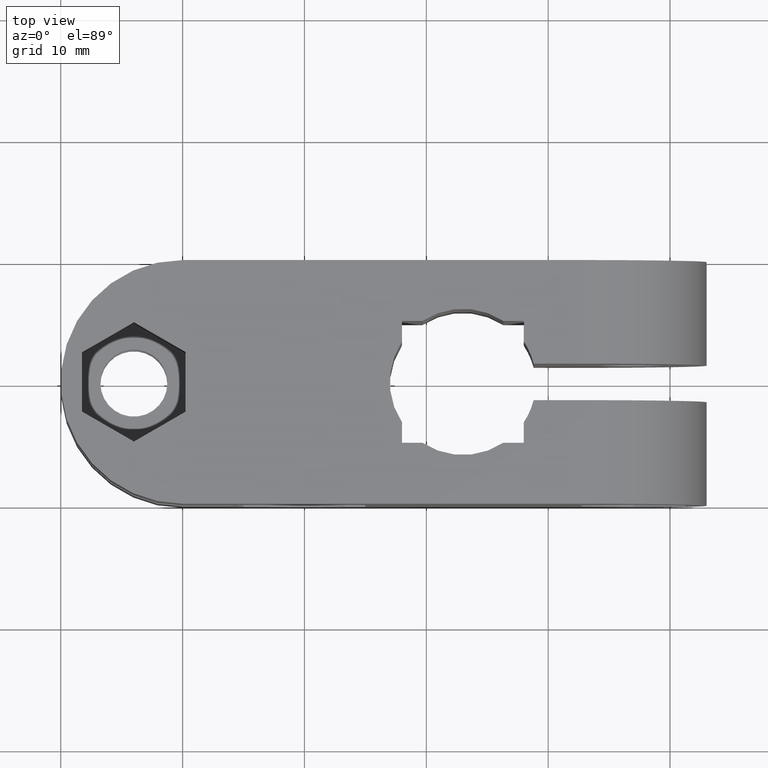
[diagram: clean part render]
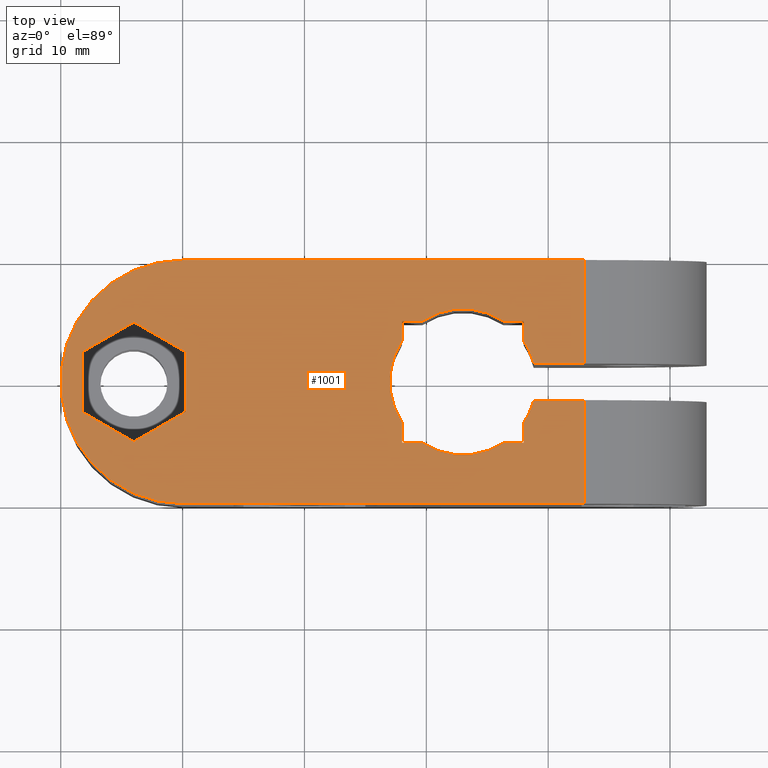
[diagram: same view with one face highlighted and labeled with its STEP entity id]
A machine part, top view. The second image highlights one B-rep face of the part: STEP entity #1001.
In plain terms, the highlighted planar face has unit normal (0, 0, 1).
Its self-contained STEP definition (entity closure, byte-faithful):
#51=CARTESIAN_POINT('',(-9.999999999999986,0.0,10.0));
#52=VERTEX_POINT('',#51);
#68=CARTESIAN_POINT('',(-9.999999999999993,-19.999999999999996,10.0));
#69=VERTEX_POINT('',#68);
#76=CARTESIAN_POINT('',(-9.999999999999986,-10.000000000000011,10.0));
#77=DIRECTION('',(0.0,0.0,1.0));
#78=DIRECTION('',(0.0,1.0,0.0));
#79=AXIS2_PLACEMENT_3D('',#76,#77,#78);
#80=CIRCLE('',#79,10.000000000000011);
#81=EDGE_CURVE('',#52,#69,#80,.T.);
#224=CARTESIAN_POINT('',(23.0,-1.065814E-014,10.0));
#225=VERTEX_POINT('',#224);
#226=CARTESIAN_POINT('',(23.0,-5.453002E-015,10.0));
#227=DIRECTION('',(-1.0,0.0,0.0));
#228=VECTOR('',#227,32.999999999999986);
#229=LINE('',#226,#228);
#230=EDGE_CURVE('',#225,#52,#229,.T.);
#387=CARTESIAN_POINT('',(23.0,-20.000000000000004,10.0));
#388=VERTEX_POINT('',#387);
#396=CARTESIAN_POINT('',(-9.999999999999993,-19.999999999999996,10.0));
#397=DIRECTION('',(1.0,0.0,0.0));
#398=VECTOR('',#397,32.999999999999993);
#399=LINE('',#396,#398);
#400=EDGE_CURVE('',#69,#388,#399,.T.);
#586=CARTESIAN_POINT('',(23.0,-11.500000000000011,10.0));
#587=VERTEX_POINT('',#586);
#595=CARTESIAN_POINT('',(23.0,-20.000000000000004,10.0));
#596=DIRECTION('',(0.0,1.0,0.0));
#597=VECTOR('',#596,8.499999999999993);
#598=LINE('',#595,#597);
#599=EDGE_CURVE('',#388,#587,#598,.T.);
#611=CARTESIAN_POINT('',(23.0,-8.500000000000011,10.0));
#612=VERTEX_POINT('',#611);
#613=CARTESIAN_POINT('',(23.0,-8.500000000000011,10.0));
#614=DIRECTION('',(0.0,1.0,0.0));
#615=VECTOR('',#614,8.500000000000000);
#616=LINE('',#613,#615);
#617=EDGE_CURVE('',#612,#225,#616,.T.);
#816=CARTESIAN_POINT('',(-25.300001006372284,-22.000001048331956,10.0));
#817=DIRECTION('',(0.0,0.0,1.0));
#818=DIRECTION('',(1.0,0.0,0.0));
#819=AXIS2_PLACEMENT_3D('',#816,#817,#818);
#820=PLANE('',#819);
#821=ORIENTED_EDGE('',*,*,#81,.T.);
#822=ORIENTED_EDGE('',*,*,#400,.T.);
#823=ORIENTED_EDGE('',*,*,#599,.T.);
#824=CARTESIAN_POINT('',(18.809475019311126,-11.500000000000011,10.0));
#825=VERTEX_POINT('',#824);
#826=CARTESIAN_POINT('',(23.0,-11.500000000000011,10.0));
#827=DIRECTION('',(-1.0,0.0,0.0));
#828=VECTOR('',#827,4.190524980688874);
#829=LINE('',#826,#828);
#830=EDGE_CURVE('',#587,#825,#829,.T.);
#831=ORIENTED_EDGE('',*,*,#830,.T.);
#832=CARTESIAN_POINT('',(18.0,-13.316624790355409,10.0));
#833=VERTEX_POINT('',#832);
#834=CARTESIAN_POINT('',(13.0,-10.000000000000011,10.0));
#835=DIRECTION('',(0.0,0.0,1.0));
#836=DIRECTION('',(1.0,0.0,0.0));
#837=AXIS2_PLACEMENT_3D('',#834,#835,#836);
#838=CIRCLE('',#837,6.0);
#839=EDGE_CURVE('',#833,#825,#838,.T.);
#840=ORIENTED_EDGE('',*,*,#839,.F.);
#841=CARTESIAN_POINT('',(18.0,-15.000000000000011,10.0));
#842=VERTEX_POINT('',#841);
#843=CARTESIAN_POINT('',(18.0,-15.000000000000011,10.0));
#844=DIRECTION('',(0.0,1.0,0.0));
#845=VECTOR('',#844,1.683375209644600);
#846=LINE('',#843,#845);
#847=EDGE_CURVE('',#842,#833,#846,.T.);
#848=ORIENTED_EDGE('',*,*,#847,.F.);
#849=CARTESIAN_POINT('',(16.316624790355398,-15.000000000000011,10.0));
#850=VERTEX_POINT('',#849);
#851=CARTESIAN_POINT('',(16.316624790355398,-15.000000000000011,10.0));
#852=DIRECTION('',(1.0,0.0,0.0));
#853=VECTOR('',#852,1.683375209644602);
#854=LINE('',#851,#853);
#855=EDGE_CURVE('',#850,#842,#854,.T.);
#856=ORIENTED_EDGE('',*,*,#855,.F.);
#857=CARTESIAN_POINT('',(9.683375209644602,-15.000000000000011,10.0));
#858=VERTEX_POINT('',#857);
#859=CARTESIAN_POINT('',(13.0,-10.000000000000011,10.0));
#860=DIRECTION('',(0.0,0.0,1.0));
#861=DIRECTION('',(1.0,0.0,0.0));
#862=AXIS2_PLACEMENT_3D('',#859,#860,#861);
#863=CIRCLE('',#862,6.0);
#864=EDGE_CURVE('',#858,#850,#863,.T.);
#865=ORIENTED_EDGE('',*,*,#864,.F.);
#866=CARTESIAN_POINT('',(8.0,-15.000000000000011,10.0));
#867=VERTEX_POINT('',#866);
#868=CARTESIAN_POINT('',(8.0,-15.000000000000011,10.0));
#869=DIRECTION('',(1.0,0.0,0.0));
#870=VECTOR('',#869,1.683375209644600);
#871=LINE('',#868,#870);
#872=EDGE_CURVE('',#867,#858,#871,.T.);
#873=ORIENTED_EDGE('',*,*,#872,.F.);
#874=CARTESIAN_POINT('',(8.0,-13.316624790355416,10.0));
#875=VERTEX_POINT('',#874);
#876=CARTESIAN_POINT('',(8.000000000000002,-13.316624790355412,10.0));
#877=DIRECTION('',(0.0,-1.0,0.0));
#878=VECTOR('',#877,1.683375209644597);
#879=LINE('',#876,#878);
#880=EDGE_CURVE('',#875,#867,#879,.T.);
#881=ORIENTED_EDGE('',*,*,#880,.F.);
#882=CARTESIAN_POINT('',(8.0,-6.683375209644613,10.0));
#883=VERTEX_POINT('',#882);
#884=CARTESIAN_POINT('',(13.0,-10.000000000000011,10.0));
#885=DIRECTION('',(0.0,0.0,1.0));
#886=DIRECTION('',(1.0,0.0,0.0));
#887=AXIS2_PLACEMENT_3D('',#884,#885,#886);
#888=CIRCLE('',#887,6.0);
#889=EDGE_CURVE('',#883,#875,#888,.T.);
#890=ORIENTED_EDGE('',*,*,#889,.F.);
#891=CARTESIAN_POINT('',(8.0,-5.000000000000011,10.0));
#892=VERTEX_POINT('',#891);
#893=CARTESIAN_POINT('',(8.0,-5.000000000000011,10.0));
#894=DIRECTION('',(0.0,-1.0,0.0));
#895=VECTOR('',#894,1.683375209644599);
#896=LINE('',#893,#895);
#897=EDGE_CURVE('',#892,#883,#896,.T.);
#898=ORIENTED_EDGE('',*,*,#897,.F.);
#899=CARTESIAN_POINT('',(9.683375209644598,-5.000000000000011,10.0));
#900=VERTEX_POINT('',#899);
#901=CARTESIAN_POINT('',(9.683375209644598,-5.000000000000012,10.0));
#902=DIRECTION('',(-1.0,0.0,0.0));
#903=VECTOR('',#902,1.683375209644598);
#904=LINE('',#901,#903);
#905=EDGE_CURVE('',#900,#892,#904,.T.);
#906=ORIENTED_EDGE('',*,*,#905,.F.);
#907=CARTESIAN_POINT('',(16.316624790355402,-5.000000000000011,10.0));
#908=VERTEX_POINT('',#907);
#909=CARTESIAN_POINT('',(13.0,-10.000000000000011,10.0));
#910=DIRECTION('',(0.0,0.0,1.0));
#911=DIRECTION('',(1.0,0.0,0.0));
#912=AXIS2_PLACEMENT_3D('',#909,#910,#911);
#913=CIRCLE('',#912,6.0);
#914=EDGE_CURVE('',#908,#900,#913,.T.);
#915=ORIENTED_EDGE('',*,*,#914,.F.);
#916=CARTESIAN_POINT('',(18.0,-5.000000000000011,10.0));
#917=VERTEX_POINT('',#916);
#918=CARTESIAN_POINT('',(18.0,-5.000000000000011,10.0));
#919=DIRECTION('',(-1.0,0.0,0.0));
#920=VECTOR('',#919,1.683375209644598);
#921=LINE('',#918,#920);
#922=EDGE_CURVE('',#917,#908,#921,.T.);
#923=ORIENTED_EDGE('',*,*,#922,.F.);
#924=CARTESIAN_POINT('',(18.0,-6.683375209644613,10.0));
#925=VERTEX_POINT('',#924);
#926=CARTESIAN_POINT('',(18.0,-6.683375209644611,10.0));
#927=DIRECTION('',(0.0,1.0,0.0));
#928=VECTOR('',#927,1.683375209644600);
#929=LINE('',#926,#928);
#930=EDGE_CURVE('',#925,#917,#929,.T.);
#931=ORIENTED_EDGE('',*,*,#930,.F.);
#932=CARTESIAN_POINT('',(18.809475019311126,-8.500000000000011,10.0));
#933=VERTEX_POINT('',#932);
#934=CARTESIAN_POINT('',(13.0,-10.000000000000011,10.0));
#935=DIRECTION('',(0.0,0.0,1.0));
#936=DIRECTION('',(1.0,0.0,0.0));
#937=AXIS2_PLACEMENT_3D('',#934,#935,#936);
#938=CIRCLE('',#937,6.0);
#939=EDGE_CURVE('',#933,#925,#938,.T.);
#940=ORIENTED_EDGE('',*,*,#939,.F.);
#941=CARTESIAN_POINT('',(18.809475019311126,-8.500000000000011,10.0));
#942=DIRECTION('',(1.0,0.0,0.0));
#943=VECTOR('',#942,4.190524980688874);
#944=LINE('',#941,#943);
#945=EDGE_CURVE('',#933,#612,#944,.T.);
#946=ORIENTED_EDGE('',*,*,#945,.T.);
#947=ORIENTED_EDGE('',*,*,#617,.T.);
#948=ORIENTED_EDGE('',*,*,#230,.T.);
#949=EDGE_LOOP('',(#821,#822,#823,#831,#840,#848,#856,#865,#873,#881,#890,#898,#906,#915,#923,#931,#940,#946,#947,#948));
#950=FACE_OUTER_BOUND('',#949,.T.);
#951=CARTESIAN_POINT('',(-13.999999999999996,-14.907477288111824,10.0));
#952=VERTEX_POINT('',#951);
#953=CARTESIAN_POINT('',(-9.749999999999996,-12.453738644055914,10.0));
#954=VERTEX_POINT('',#953);
#955=CARTESIAN_POINT('',(-13.999999999999996,-14.907477288111824,10.0));
#956=DIRECTION('',(0.866025403784439,0.500000000000000,0.0));
#957=VECTOR('',#956,4.907477288111819);
#958=LINE('',#955,#957);
#959=EDGE_CURVE('',#952,#954,#958,.T.);
#960=ORIENTED_EDGE('',*,*,#959,.F.);
#961=CARTESIAN_POINT('',(-18.250000000000000,-12.453738644055907,10.0));
#962=VERTEX_POINT('',#961);
#963=CARTESIAN_POINT('',(-18.250000000000000,-12.453738644055907,10.0));
#964=DIRECTION('',(0.866025403784438,-0.500000000000001,0.0));
#965=VECTOR('',#964,4.907477288111823);
#966=LINE('',#963,#965);
#967=EDGE_CURVE('',#962,#952,#966,.T.);
#968=ORIENTED_EDGE('',*,*,#967,.F.);
#969=CARTESIAN_POINT('',(-18.249999999999993,-7.546261355944093,10.0));
#970=VERTEX_POINT('',#969);
#971=CARTESIAN_POINT('',(-18.249999999999993,-7.546261355944093,10.0));
#972=DIRECTION('',(0.0,-1.0,0.0));
#973=VECTOR('',#972,4.907477288111814);
#974=LINE('',#971,#973);
#975=EDGE_CURVE('',#970,#962,#974,.T.);
#976=ORIENTED_EDGE('',*,*,#975,.F.);
#977=CARTESIAN_POINT('',(-13.999999999999993,-5.092522711888183,10.0));
#978=VERTEX_POINT('',#977);
#979=CARTESIAN_POINT('',(-13.999999999999993,-5.092522711888183,10.0));
#980=DIRECTION('',(-0.866025403784439,-0.500000000000000,0.0));
#981=VECTOR('',#980,4.907477288111819);
#982=LINE('',#979,#981);
#983=EDGE_CURVE('',#978,#970,#982,.T.);
#984=ORIENTED_EDGE('',*,*,#983,.F.);
#985=CARTESIAN_POINT('',(-9.749999999999996,-7.546261355944093,10.0));
#986=VERTEX_POINT('',#985);
#987=CARTESIAN_POINT('',(-9.749999999999996,-7.546261355944093,10.0));
#988=DIRECTION('',(-0.866025403784439,0.500000000000000,0.0));
#989=VECTOR('',#988,4.907477288111819);
#990=LINE('',#987,#989);
#991=EDGE_CURVE('',#986,#978,#990,.T.);
#992=ORIENTED_EDGE('',*,*,#991,.F.);
#993=CARTESIAN_POINT('',(-9.749999999999996,-12.453738644055914,10.0));
#994=DIRECTION('',(0.0,1.0,0.0));
#995=VECTOR('',#994,4.907477288111821);
#996=LINE('',#993,#995);
#997=EDGE_CURVE('',#954,#986,#996,.T.);
#998=ORIENTED_EDGE('',*,*,#997,.F.);
#999=EDGE_LOOP('',(#960,#968,#976,#984,#992,#998));
#1000=FACE_BOUND('',#999,.T.);
#1001=ADVANCED_FACE('',(#950,#1000),#820,.T.);